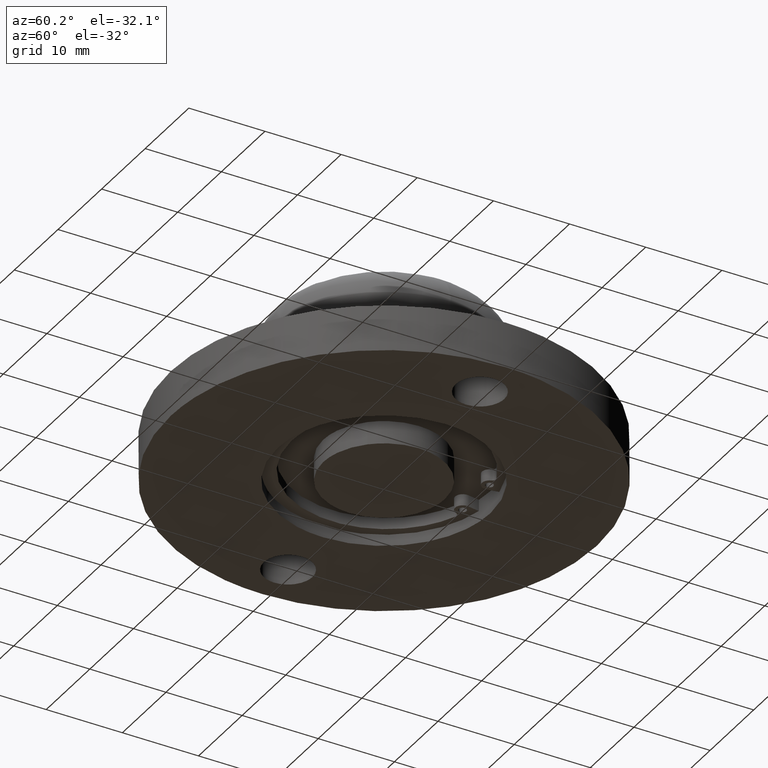
[diagram: clean part render]
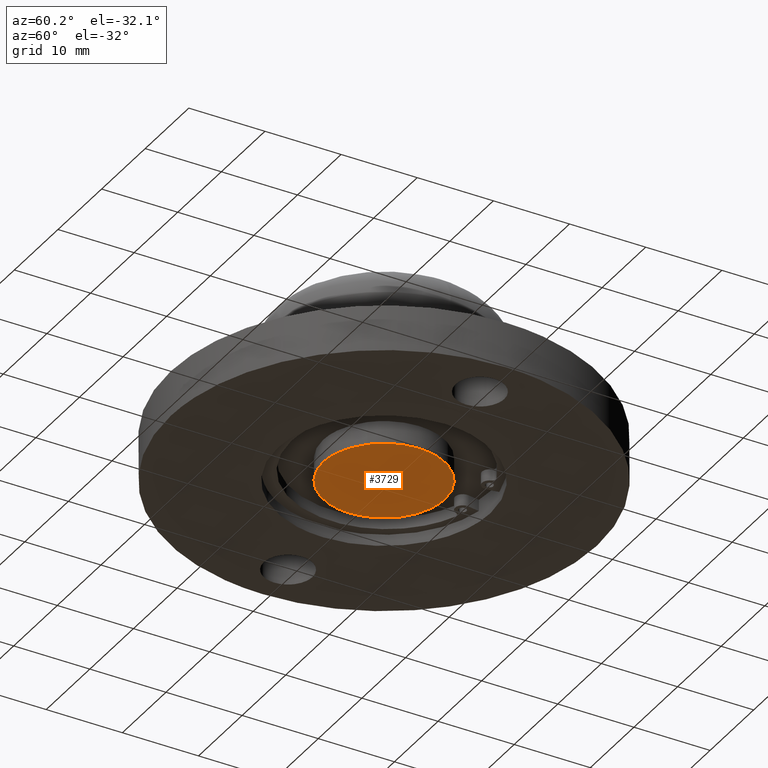
[diagram: same view with one face highlighted and labeled with its STEP entity id]
A machine part, auxiliary view. The second image highlights one B-rep face of the part: STEP entity #3729.
In plain terms, the highlighted face is a freeform B-spline surface patch.
Its self-contained STEP definition (entity closure, byte-faithful):
#3639=CARTESIAN_POINT('',(-8.799199968988981,-8.799199968988861,-3.552714E-014));
#3640=CARTESIAN_POINT('',(8.799200398142252,-8.799199968988861,-3.552714E-014));
#3641=CARTESIAN_POINT('',(-8.799199968988981,8.799200398142300,-3.552714E-014));
#3642=CARTESIAN_POINT('',(8.799200398142252,8.799200398142300,-3.552714E-014));
#3643=B_SPLINE_SURFACE_WITH_KNOTS('',1,1,((#3639,#3641),(#3640,#3642)),.UNSPECIFIED.,.F.,.F.,.U.,(2,2),(2,2),(0.0,17.598400367131230),(0.0,17.598400367131159),.UNSPECIFIED.);
#3644=CARTESIAN_POINT('',(7.999999999999915,0.0,1.110223E-013));
#3645=VERTEX_POINT('',#3644);
#3646=CARTESIAN_POINT('',(5.802994814840766,-5.506836509249681,3.371983E-012));
#3647=VERTEX_POINT('',#3646);
#3648=CARTESIAN_POINT('',(7.999999999999915,0.0,1.110223E-013));
#3649=CARTESIAN_POINT('',(8.000077456135555,-0.537787056939472,4.309707E-013));
#3650=CARTESIAN_POINT('',(7.913521998635408,-1.391870806450806,9.384937E-013));
#3651=CARTESIAN_POINT('',(7.545630818440568,-2.769657965161141,1.755634E-012));
#3652=CARTESIAN_POINT('',(6.926263304644805,-4.130630900208910,2.561025E-012));
#3653=CARTESIAN_POINT('',(6.216821365707030,-5.070926294838474,3.115516E-012));
#3654=CARTESIAN_POINT('',(5.802994814840766,-5.506836509249681,3.371983E-012));
#3655=B_SPLINE_CURVE_WITH_KNOTS('',3,(#3648,#3649,#3650,#3651,#3652,#3653,#3654),.UNSPECIFIED.,.F.,.U.,(4,1,1,1,4),(7.122985E-009,1.613348348271518,2.562385359381918,4.270625849032834,6.073781377151684),.UNSPECIFIED.);
#3656=EDGE_CURVE('',#3645,#3647,#3655,.T.);
#3657=ORIENTED_EDGE('',*,*,#3656,.T.);
#3658=CARTESIAN_POINT('',(-0.000000710805459,-7.999999999999968,1.110223E-013));
#3659=VERTEX_POINT('',#3658);
#3660=CARTESIAN_POINT('',(5.802994814840766,-5.506836509249681,3.371983E-012));
#3661=CARTESIAN_POINT('',(5.407348559210947,-5.923908333517062,3.151366E-012));
#3662=CARTESIAN_POINT('',(4.603386625021766,-6.606077847629964,2.701921E-012));
#3663=CARTESIAN_POINT('',(3.268028644148791,-7.348205259845118,1.952693E-012));
#3664=CARTESIAN_POINT('',(1.758354315980088,-7.864801977519764,1.103424E-012));
#3665=CARTESIAN_POINT('',(0.642514846755833,-8.000165285185547,4.739969E-013));
#3666=CARTESIAN_POINT('',(-0.000000710805459,-7.999999999999968,1.110223E-013));
#3667=B_SPLINE_CURVE_WITH_KNOTS('',3,(#3660,#3661,#3662,#3663,#3664,#3665,#3666),.UNSPECIFIED.,.F.,.U.,(4,1,1,1,4),(4.038081E-009,1.724615198836328,3.144886887748518,4.565157714144321,6.492668919993742),.UNSPECIFIED.);
#3668=EDGE_CURVE('',#3647,#3659,#3667,.T.);
#3669=ORIENTED_EDGE('',*,*,#3668,.T.);
#3670=CARTESIAN_POINT('',(-8.000000000000085,0.0,0.0));
#3671=VERTEX_POINT('',#3670);
#3672=CARTESIAN_POINT('',(-0.000000710805459,-7.999999999999968,1.110223E-013));
#3673=CARTESIAN_POINT('',(-0.589049192321405,-8.000082740027628,1.069355E-013));
#3674=CARTESIAN_POINT('',(-1.767119889327056,-7.869336554376195,9.785379E-014));
#3675=CARTESIAN_POINT('',(-3.261552417759149,-7.355222338212263,8.391670E-014));
#3676=CARTESIAN_POINT('',(-4.517771980008591,-6.643498144912127,7.026134E-014));
#3677=CARTESIAN_POINT('',(-5.389657186915611,-5.945687272569310,5.936939E-014));
#3678=CARTESIAN_POINT('',(-6.157776086175833,-5.138871884267799,4.844109E-014));
#3679=CARTESIAN_POINT('',(-6.881088482730301,-4.163735336140089,3.665573E-014));
#3680=CARTESIAN_POINT('',(-7.524090231481759,-2.866608044610377,2.319338E-014));
#3681=CARTESIAN_POINT('',(-7.918273648396031,-1.407159458996584,1.033122E-014));
#3682=CARTESIAN_POINT('',(-8.000030096130301,-0.458144463972019,3.178807E-015));
#3683=CARTESIAN_POINT('',(-8.000000000000085,0.0,0.0));
#3684=B_SPLINE_CURVE_WITH_KNOTS('',3,(#3672,#3673,#3674,#3675,#3676,#3677,#3678,#3679,#3680,#3681,#3682,#3683),.UNSPECIFIED.,.F.,.U.,(4,1,1,1,1,1,1,1,1,4),(8.767996E-009,1.767144346406578,3.534317345907102,4.712431316319714,6.086874608581115,6.872269528559730,8.050367564624292,9.719364258487410,11.192008494247910,12.566449062376829),.UNSPECIFIED.);
#3685=EDGE_CURVE('',#3659,#3671,#3684,.T.);
#3686=ORIENTED_EDGE('',*,*,#3685,.T.);
#3687=CARTESIAN_POINT('',(-5.802994814840954,5.506836509249697,3.291471E-012));
#3688=VERTEX_POINT('',#3687);
#3689=CARTESIAN_POINT('',(-8.000000000000085,0.0,0.0));
#3690=CARTESIAN_POINT('',(-8.000173738028154,0.664337776340864,3.952385E-013));
#3691=CARTESIAN_POINT('',(-7.869186120236518,1.708163178631546,1.017159E-012));
#3692=CARTESIAN_POINT('',(-7.399839806522925,3.122929733434838,1.862114E-012));
#3693=CARTESIAN_POINT('',(-6.776202103716360,4.337091133189444,2.588792E-012));
#3694=CARTESIAN_POINT('',(-6.173233260451160,5.116791347266005,3.056849E-012));
#3695=CARTESIAN_POINT('',(-5.802994814840954,5.506836509249697,3.291471E-012));
#3696=B_SPLINE_CURVE_WITH_KNOTS('',3,(#3689,#3690,#3691,#3692,#3693,#3694,#3695),.UNSPECIFIED.,.F.,.U.,(4,1,1,1,4),(7.123182E-009,1.992963619173836,3.131790396175678,4.460433036005346,6.073781377151700),.UNSPECIFIED.);
#3697=EDGE_CURVE('',#3671,#3688,#3696,.T.);
#3698=ORIENTED_EDGE('',*,*,#3697,.T.);
#3699=CARTESIAN_POINT('',(0.000000710805191,7.999999999999968,1.110223E-013));
#3700=VERTEX_POINT('',#3699);
#3701=CARTESIAN_POINT('',(-5.802994814840954,5.506836509249697,3.291471E-012));
#3702=CARTESIAN_POINT('',(-5.500409930169246,5.825733121473762,3.126944E-012));
#3703=CARTESIAN_POINT('',(-4.817194592773610,6.436079431307198,2.754692E-012));
#3704=CARTESIAN_POINT('',(-3.751589866543852,7.101134883764419,2.172104E-012));
#3705=CARTESIAN_POINT('',(-2.568559390760150,7.609408677438482,1.523720E-012));
#3706=CARTESIAN_POINT('',(-1.352627400906472,7.924578817442589,8.558665E-013));
#3707=CARTESIAN_POINT('',(-0.439604427425027,8.000024090455815,3.532675E-013));
#3708=CARTESIAN_POINT('',(0.000000710805191,7.999999999999968,1.110223E-013));
#3709=B_SPLINE_CURVE_WITH_KNOTS('',3,(#3701,#3702,#3703,#3704,#3705,#3706,#3707,#3708),.UNSPECIFIED.,.F.,.U.,(4,1,1,1,1,4),(4.038115E-009,1.318823256166779,2.739095580675714,3.753573343345607,5.173845667862869,6.492668919993652),.UNSPECIFIED.);
#3710=EDGE_CURVE('',#3688,#3700,#3709,.T.);
#3711=ORIENTED_EDGE('',*,*,#3710,.T.);
#3712=CARTESIAN_POINT('',(0.000000710805191,7.999999999999968,1.110223E-013));
#3713=CARTESIAN_POINT('',(0.589055319635816,8.000099804903774,1.151104E-013));
#3714=CARTESIAN_POINT('',(1.505300729850739,7.898325302900835,1.207619E-013));
#3715=CARTESIAN_POINT('',(2.764872543278387,7.533022149441172,1.269671E-013));
#3716=CARTESIAN_POINT('',(3.844840031109829,7.054333878907922,1.311394E-013));
#3717=CARTESIAN_POINT('',(4.891057992211819,6.373690445762065,1.336760E-013));
#3718=CARTESIAN_POINT('',(5.960896260813771,5.404128769390192,1.343719E-013));
#3719=CARTESIAN_POINT('',(6.858044016825770,4.225022633764947,1.324154E-013));
#3720=CARTESIAN_POINT('',(7.484232874215961,2.921616488824483,1.277162E-013));
#3721=CARTESIAN_POINT('',(7.894664738078984,1.538016014239816,1.209635E-013));
#3722=CARTESIAN_POINT('',(8.000120081226527,0.589057698419210,1.151105E-013));
#3723=CARTESIAN_POINT('',(7.999999999999915,0.0,1.110223E-013));
#3724=B_SPLINE_CURVE_WITH_KNOTS('',3,(#3712,#3713,#3714,#3715,#3716,#3717,#3718,#3719,#3720,#3721,#3722,#3723),.UNSPECIFIED.,.F.,.U.,(4,1,1,1,1,1,1,1,1,4),(8.767456E-009,1.767144346406091,2.748910868754702,3.927023506440676,5.301479958751252,6.479573356972422,8.246720005498405,9.719364258487397,10.799306031342940,12.566449062376879),.UNSPECIFIED.);
#3725=EDGE_CURVE('',#3700,#3645,#3724,.T.);
#3726=ORIENTED_EDGE('',*,*,#3725,.T.);
#3727=EDGE_LOOP('',(#3657,#3669,#3686,#3698,#3711,#3726));
#3728=FACE_OUTER_BOUND('',#3727,.T.);
#3729=ADVANCED_FACE('',(#3728),#3643,.F.);